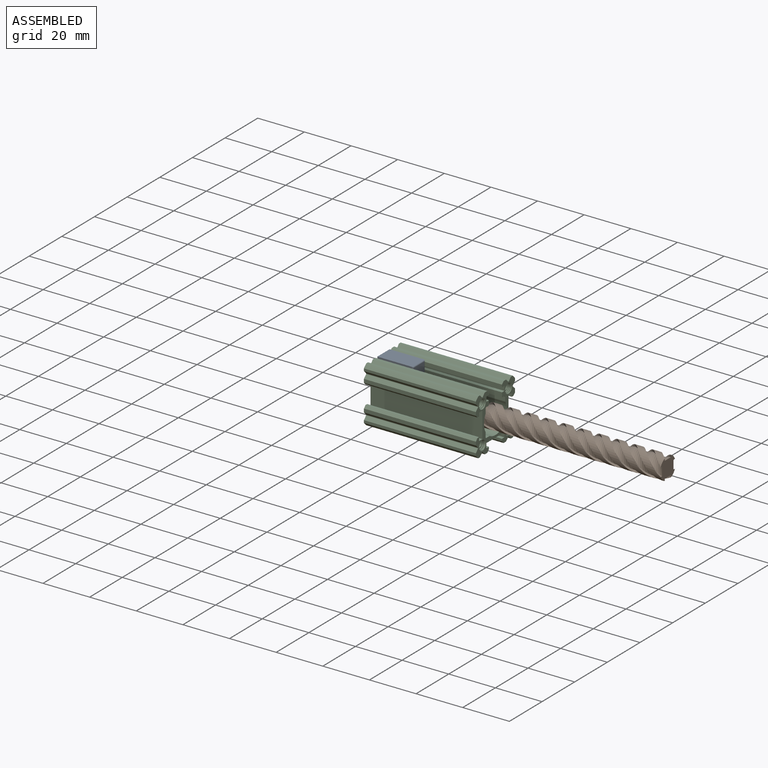
[diagram: assembled view]
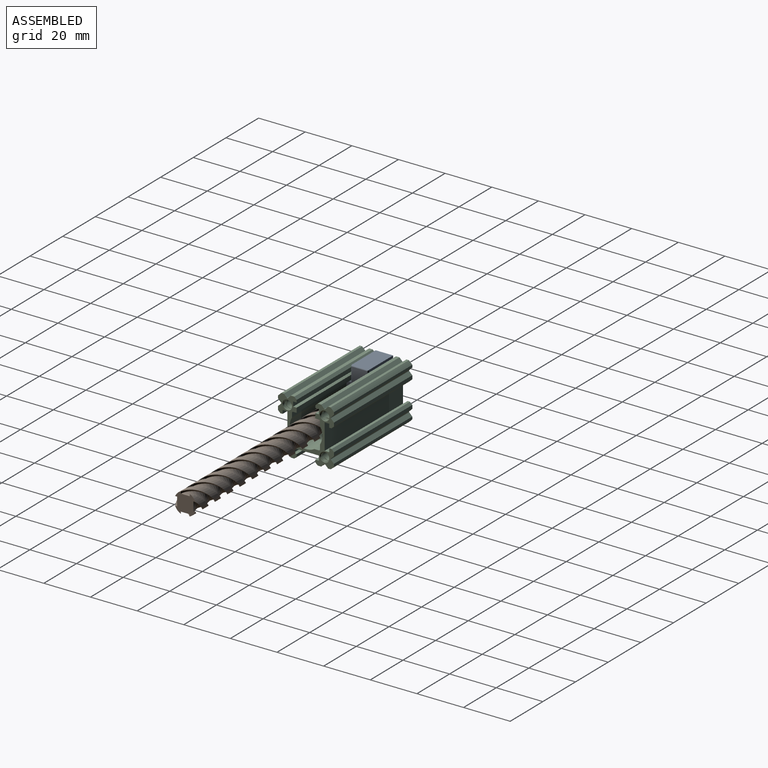
[diagram: assembled view, second angle]
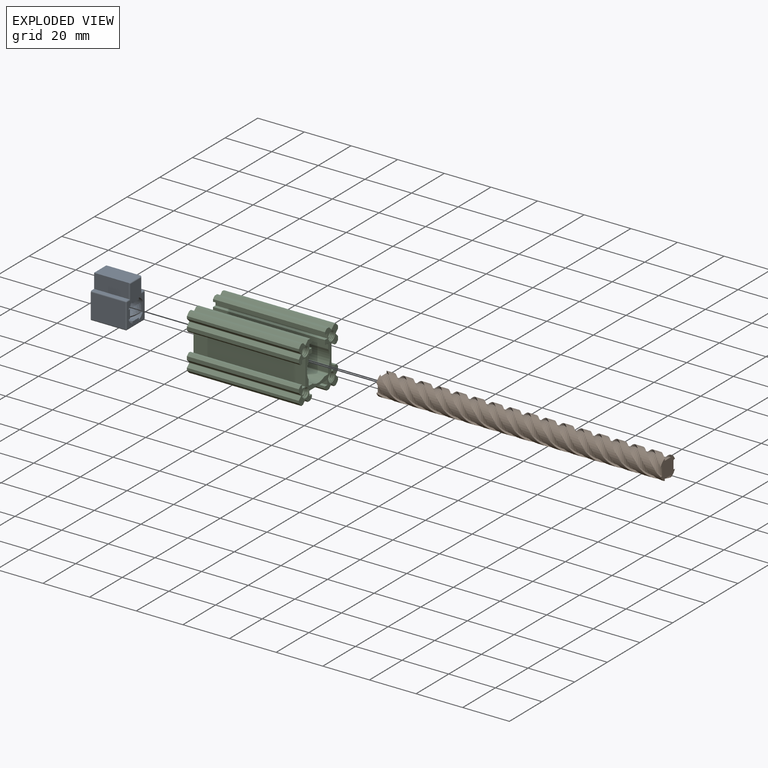
[diagram: exploded view]
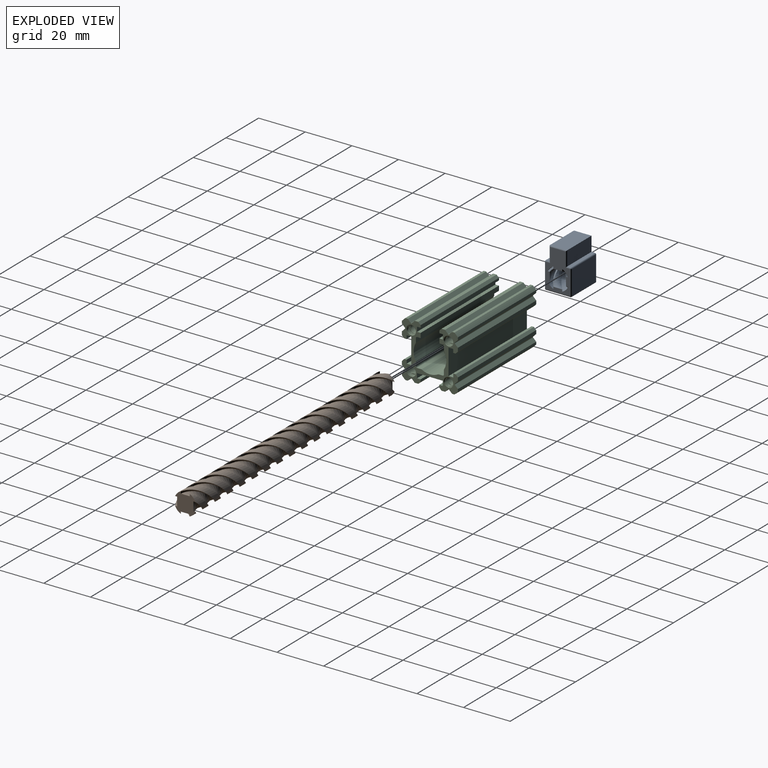
[diagram: exploded view, second angle]
ASSEMBLY  parts=3 mates=2
PART A: 46 faces, bbox 18.3x11.5x17.8 mm
  f0: extruded ~7.62x3.81mm, area 14.2mm2, adj f3,f15,f24,f29
  f1: cylinder r=4.76mm len=3.62mm, axis (-1,0,0), area 6.4mm2, adj f6,f17,f27
  f2: cylinder r=4.76mm len=11.26mm, axis (-1,0,0), area 33.7mm2, adj f6,f16,f20,f27
  f3: cylinder r=4.76mm len=11.26mm, axis (-1,0,0), area 33.6mm2, adj f0,f17,f24,f29
  f4: cylinder r=4.76mm len=15.24mm, axis (-1,0,0), area 54.3mm2, adj f16,f17,f21,f26
  f5: cylinder r=4.76mm len=15.24mm, axis (-1,0,0), area 54.3mm2, adj f16,f17,f18,f23
  f6: extruded ~7.62x3.81mm, area 14.2mm2, adj f1,f2,f20,f27
  f7: plane 14.74x1.5mm, normal (0,0,1), area 22.1mm2, adj f8,f17,f30,f34
  f8: plane 14.74x6.25mm, normal (0,-1,0), area 92.1mm2, adj f7,f9,f17,f36
  f9: plane 14.74x7.5mm, normal (0,0,1), area 110.5mm2, adj f8,f10,f17,f39
  f10: plane 14.74x6.25mm, normal (0,1,0), area 92.1mm2, adj f9,f11,f17,f41
  f11: plane 14.74x1.5mm, normal (0,0,1), area 22.1mm2, adj f10,f17,f43,f45
  f12: plane 14.74x10.5mm, normal (0,1,0), area 154.8mm2, adj f17,f37,f42,f45
  f13: plane 14.74x10.5mm, normal (0,0,-1), area 154.8mm2, adj f17,f32,f37,f38
  f14: plane 14.74x10.5mm, normal (0,-1,0), area 154.8mm2, adj f17,f30,f32,f33
  f15: cylinder r=4.76mm len=3.62mm, axis (-1,0,0), area 6.4mm2, adj f0,f16,f29
  f16: plane 16.75x10.5mm, normal (1,0,0), area 97mm2, adj f2,f4,f5,f15,f18,f19,f20,f21
  f17: plane 17.75x11.5mm, normal (-1,0,0), area 125mm2, adj f1,f3,f4,f5,f7,f8,f9,f10
  f18: bspline ~18.29x9.35mm, area 17.1mm2, adj f5,f16,f17,f19
  f19: bspline ~18.29x8.22mm, area 59.5mm2, adj f16,f17,f18,f20
  f20: bspline ~15.24x9.35mm, area 17.1mm2, adj f2,f6,f16,f17,f19
  f21: bspline ~18.29x9.35mm, area 17.1mm2, adj f4,f16,f17,f22
  f22: bspline ~18.29x8.22mm, area 59.5mm2, adj f16,f17,f21,f23
  f23: bspline ~18.29x9.97mm, area 17.1mm2, adj f5,f16,f17,f22
  f24: bspline ~18.29x9.35mm, area 17.1mm2, adj f0,f3,f16,f17,f25
  f25: bspline ~18.29x8.22mm, area 59.5mm2, adj f16,f17,f24,f26
  f26: bspline ~18.29x9.97mm, area 17.1mm2, adj f4,f16,f17,f25
  f27: bspline ~18.29x9.35mm, area 17.1mm2, adj f1,f2,f6,f16,f17,f28
  f28: bspline ~18.29x8.22mm, area 59.5mm2, adj f16,f17,f27,f29
  f29: bspline ~15.24x9.35mm, area 17.1mm2, adj f0,f3,f15,f16,f17,f28
  f30: cylinder r=0.5mm len=14.74mm, axis (-1,0,0), area 11.6mm2, adj f7,f14,f17,f31
  f31: sphere r=0.5mm, area 0.5mm2, adj f30,f33,f34
  f32: cylinder r=0.5mm len=14.74mm, axis (1,0,0), area 11.6mm2, adj f13,f14,f17,f35
  f33: cylinder r=0.5mm len=10.5mm, axis (0,0,-1), area 8.2mm2, adj f14,f16,f31,f35
  f34: cylinder r=0.5mm len=2mm, axis (0,-1,0), area 1.4mm2, adj f7,f16,f31,f36
  f35: sphere r=0.5mm, area 0.2mm2, adj f32,f33,f38
  f36: cylinder r=0.5mm len=6.75mm, axis (0,0,-1), area 4.9mm2, adj f8,f16,f34,f39
  f37: cylinder r=0.5mm len=14.74mm, axis (-1,0,0), area 11.6mm2, adj f12,f13,f17,f40
  f38: cylinder r=0.5mm len=10.5mm, axis (0,1,0), area 8.2mm2, adj f13,f16,f35,f40
  f39: cylinder r=0.5mm len=7.5mm, axis (0,-1,0), area 5.5mm2, adj f9,f16,f36,f41
  f40: sphere r=0.5mm, area 0.5mm2, adj f37,f38,f42
  f41: cylinder r=0.5mm len=6.75mm, axis (0,0,1), area 4.9mm2, adj f10,f16,f39,f43
  f42: cylinder r=0.5mm len=10.5mm, axis (0,0,1), area 8.2mm2, adj f12,f16,f40,f44
  f43: cylinder r=0.5mm len=2mm, axis (0,-1,0), area 1.4mm2, adj f11,f16,f41,f44
  f44: sphere r=0.5mm, area 0.3mm2, adj f42,f43,f45
  f45: cylinder r=0.5mm len=14.74mm, axis (1,0,0), area 11.6mm2, adj f11,f12,f17,f44
PART B: 18 faces, bbox 121.9x10x10 mm
  f0: bspline ~121.92x9.97mm, area 135.4mm2, adj f1,f4,f7,f8
  f1: bspline ~121.92x8.3mm, area 468.9mm2, adj f0,f2,f7,f8
  f2: bspline ~121.92x9.97mm, area 135.4mm2, adj f1,f3,f7,f8
  f3: cylinder r=4.76mm len=121.92mm, axis (-1,0,0), area 429.1mm2, adj f2,f7,f8,f17
  f4: cylinder r=4.76mm len=121.92mm, axis (-1,0,0), area 429.1mm2, adj f0,f7,f8,f12
  f5: cylinder r=4.76mm len=121.92mm, axis (-1,0,0), area 429.1mm2, adj f7,f8,f10,f13
  f6: cylinder r=4.76mm len=121.92mm, axis (-1,0,0), area 429.1mm2, adj f7,f8,f11,f16
  f7: plane 8.73x8.73mm, normal (1,0,0), area 53.9mm2, adj f0,f1,f2,f3,f4,f5,f6,f9
  f8: plane 8.73x8.73mm, normal (-1,0,0), area 53.9mm2, adj f0,f1,f2,f3,f4,f5,f6,f9
  f9: bspline ~121.92x8.3mm, area 468.9mm2, adj f7,f8,f10,f11
  f10: bspline ~121.92x9.97mm, area 135.4mm2, adj f5,f7,f8,f9
  f11: bspline ~121.92x9.97mm, area 135.4mm2, adj f6,f7,f8,f9
  f12: bspline ~121.92x9.97mm, area 135.4mm2, adj f4,f7,f8,f14
  f13: bspline ~121.92x9.97mm, area 135.4mm2, adj f5,f7,f8,f14
  f14: bspline ~121.92x8.3mm, area 468.9mm2, adj f7,f8,f12,f13
  f15: bspline ~121.92x8.3mm, area 468.9mm2, adj f7,f8,f16,f17
  f16: bspline ~121.92x9.97mm, area 135.4mm2, adj f6,f7,f8,f15
  f17: bspline ~121.92x9.97mm, area 135.4mm2, adj f3,f7,f8,f15
PART C: 308 faces, bbox 24.1x48.8x24.1 mm
  f0: cylinder r=2mm len=13.95mm, axis (0,-1,0), area 21.9mm2, adj f180,f305,f306,f307
  f1: cylinder r=2mm len=13.95mm, axis (0,-1,0), area 21.9mm2, adj f178,f302,f303,f304
  f2: cylinder r=2mm len=13.95mm, axis (0,-1,0), area 21.9mm2, adj f177,f299,f300,f301
  f3: cylinder r=2mm len=13.95mm, axis (0,-1,0), area 21.9mm2, adj f176,f296,f297,f298
  f4: cylinder r=2mm len=13.95mm, axis (0,1,0), area 21.9mm2, adj f175,f293,f294,f295
  f5: cylinder r=2mm len=13.95mm, axis (0,1,0), area 21.9mm2, adj f173,f290,f291,f292
  f6: cylinder r=2mm len=13.95mm, axis (0,1,0), area 21.9mm2, adj f172,f287,f288,f289
  f7: cylinder r=2mm len=13.95mm, axis (0,1,0), area 21.9mm2, adj f171,f284,f285,f286
  f8: cylinder r=0.25mm len=48mm, axis (0,-1,0), area 18.8mm2, adj f182,f183,f237,f238
  f9: cylinder r=0.25mm len=48mm, axis (0,-1,0), area 18.8mm2, adj f182,f183,f239,f240
  f10: cylinder r=1.7mm len=3.4mm, axis (0,1,0), area 2.8mm2, adj f11,f29,f300,f301
  f11: cylinder r=1.7mm len=3.4mm, axis (0,1,0), area 2.8mm2, adj f10,f12,f300,f301
  f12: cylinder r=1.7mm len=3.4mm, axis (0,1,0), area 2.8mm2, adj f11,f13,f300,f301
  f13: cylinder r=1.7mm len=3.4mm, axis (0,1,0), area 2.8mm2, adj f12,f14,f300,f301
  f14: cylinder r=1.7mm len=3.4mm, axis (0,1,0), area 2.8mm2, adj f13,f15,f300,f301
  f15: cylinder r=1.7mm len=3.4mm, axis (0,1,0), area 2.8mm2, adj f14,f16,f300,f301
  f16: cylinder r=1.7mm len=3.4mm, axis (0,1,0), area 2.8mm2, adj f15,f17,f300,f301
  f17: cylinder r=1.7mm len=3.4mm, axis (0,1,0), area 2.8mm2, adj f16,f18,f300,f301
  f18: cylinder r=1.7mm len=3.4mm, axis (0,1,0), area 2.8mm2, adj f17,f19,f300,f301
  f19: cylinder r=1.7mm len=3.4mm, axis (0,1,0), area 2.8mm2, adj f18,f20,f300,f301
  f20: cylinder r=1.7mm len=3.4mm, axis (0,1,0), area 2.8mm2, adj f19,f21,f300,f301
  f21: cylinder r=1.7mm len=3.4mm, axis (0,1,0), area 2.8mm2, adj f20,f22,f300,f301
  f22: cylinder r=1.7mm len=3.4mm, axis (0,1,0), area 2.8mm2, adj f21,f23,f300,f301
  f23: cylinder r=1.7mm len=3.4mm, axis (0,1,0), area 2.8mm2, adj f22,f24,f300,f301
  f24: cylinder r=1.7mm len=3.4mm, axis (0,1,0), area 2.8mm2, adj f23,f25,f300,f301
  f25: cylinder r=1.7mm len=3.4mm, axis (0,1,0), area 2.8mm2, adj f24,f26,f300,f301
  f26: cylinder r=1.7mm len=3.4mm, axis (0,1,0), area 2.8mm2, adj f25,f27,f300,f301
  f27: cylinder r=1.7mm len=3.4mm, axis (0,1,0), area 2.8mm2, adj f26,f28,f300,f301
  f28: cylinder r=1.7mm len=21.9mm, axis (0,1,0), area 220.3mm2, adj f27,f46,f287,f288,f289,f299,f300,f301
  f29: cylinder r=1.7mm len=3.4mm, axis (0,1,0), area 0.9mm2, adj f10,f177,f300,f301
  f30: cylinder r=1.7mm len=3.4mm, axis (0,1,0), area 2.8mm2, adj f31,f47,f288,f289
  f31: cylinder r=1.7mm len=3.4mm, axis (0,1,0), area 2.8mm2, adj f30,f32,f288,f289
  f32: cylinder r=1.7mm len=3.4mm, axis (0,1,0), area 2.8mm2, adj f31,f33,f288,f289
  f33: cylinder r=1.7mm len=3.4mm, axis (0,1,0), area 2.8mm2, adj f32,f34,f288,f289
  f34: cylinder r=1.7mm len=3.4mm, axis (0,1,0), area 2.8mm2, adj f33,f35,f288,f289
  f35: cylinder r=1.7mm len=3.4mm, axis (0,1,0), area 2.8mm2, adj f34,f36,f288,f289
  f36: cylinder r=1.7mm len=3.4mm, axis (0,1,0), area 2.8mm2, adj f35,f37,f288,f289
  f37: cylinder r=1.7mm len=3.4mm, axis (0,1,0), area 2.8mm2, adj f36,f38,f288,f289
  f38: cylinder r=1.7mm len=3.4mm, axis (0,1,0), area 2.8mm2, adj f37,f39,f288,f289
  f39: cylinder r=1.7mm len=3.4mm, axis (0,1,0), area 2.8mm2, adj f38,f40,f288,f289
  f40: cylinder r=1.7mm len=3.4mm, axis (0,1,0), area 2.8mm2, adj f39,f41,f288,f289
  f41: cylinder r=1.7mm len=3.4mm, axis (0,1,0), area 2.8mm2, adj f40,f42,f288,f289
  f42: cylinder r=1.7mm len=3.4mm, axis (0,1,0), area 2.8mm2, adj f41,f43,f288,f289
  f43: cylinder r=1.7mm len=3.4mm, axis (0,1,0), area 2.8mm2, adj f42,f44,f288,f289
  f44: cylinder r=1.7mm len=3.4mm, axis (0,1,0), area 2.8mm2, adj f43,f45,f288,f289
  f45: cylinder r=1.7mm len=3.4mm, axis (0,1,0), area 2.8mm2, adj f44,f46,f288,f289
  f46: cylinder r=1.7mm len=3.4mm, axis (0,1,0), area 2.8mm2, adj f28,f45,f288,f289
  f47: cylinder r=1.7mm len=3.4mm, axis (0,1,0), area 2.8mm2, adj f30,f48,f288,f289
  f48: cylinder r=1.7mm len=3.4mm, axis (0,1,0), area 0.9mm2, adj f47,f172,f288,f289
  f49: cylinder r=1.7mm len=20.85mm, axis (0,1,0), area 216mm2, adj f50,f87,f290,f291,f292,f302,f303,f304
  f50: cylinder r=1.7mm len=3.4mm, axis (0,1,0), area 2.8mm2, adj f49,f51,f303,f304
  f51: cylinder r=1.7mm len=3.4mm, axis (0,1,0), area 2.8mm2, adj f50,f52,f303,f304
  f52: cylinder r=1.7mm len=3.4mm, axis (0,1,0), area 2.8mm2, adj f51,f53,f303,f304
  f53: cylinder r=1.7mm len=3.4mm, axis (0,1,0), area 2.8mm2, adj f52,f54,f303,f304
  f54: cylinder r=1.7mm len=3.4mm, axis (0,1,0), area 2.8mm2, adj f53,f55,f303,f304
  f55: cylinder r=1.7mm len=3.4mm, axis (0,1,0), area 2.8mm2, adj f54,f56,f303,f304
  f56: cylinder r=1.7mm len=3.4mm, axis (0,1,0), area 2.8mm2, adj f55,f57,f303,f304
  f57: cylinder r=1.7mm len=3.4mm, axis (0,1,0), area 2.8mm2, adj f56,f58,f303,f304
  f58: cylinder r=1.7mm len=3.4mm, axis (0,1,0), area 2.8mm2, adj f57,f59,f303,f304
  f59: cylinder r=1.7mm len=3.4mm, axis (0,1,0), area 2.8mm2, adj f58,f60,f303,f304
  f60: cylinder r=1.7mm len=3.4mm, axis (0,1,0), area 2.8mm2, adj f59,f61,f303,f304
  f61: cylinder r=1.7mm len=3.4mm, axis (0,1,0), area 2.8mm2, adj f60,f62,f303,f304
  f62: cylinder r=1.7mm len=3.4mm, axis (0,1,0), area 2.8mm2, adj f61,f63,f303,f304
  f63: cylinder r=1.7mm len=3.4mm, axis (0,1,0), area 2.8mm2, adj f62,f64,f303,f304
  f64: cylinder r=1.7mm len=3.4mm, axis (0,1,0), area 2.8mm2, adj f63,f65,f303,f304
  f65: cylinder r=1.7mm len=3.4mm, axis (0,1,0), area 2.8mm2, adj f64,f66,f303,f304
  f66: cylinder r=1.7mm len=3.4mm, axis (0,1,0), area 2.8mm2, adj f65,f67,f303,f304
  f67: cylinder r=1.7mm len=3.4mm, axis (0,1,0), area 2.8mm2, adj f66,f68,f303,f304
  f68: cylinder r=1.7mm len=3.4mm, axis (0,1,0), area 2.8mm2, adj f67,f69,f179,f303,f304
  f69: cylinder r=1.7mm len=1.91mm, axis (0,1,0), area 0.3mm2, adj f68,f178,f303
  f70: cylinder r=1.7mm len=3.4mm, axis (0,1,0), area 2.8mm2, adj f71,f88,f291,f292
  f71: cylinder r=1.7mm len=3.4mm, axis (0,1,0), area 2.8mm2, adj f70,f72,f291,f292
  f72: cylinder r=1.7mm len=3.4mm, axis (0,1,0), area 2.8mm2, adj f71,f73,f291,f292
  f73: cylinder r=1.7mm len=3.4mm, axis (0,1,0), area 2.8mm2, adj f72,f74,f291,f292
  f74: cylinder r=1.7mm len=3.4mm, axis (0,1,0), area 2.8mm2, adj f73,f75,f291,f292
  f75: cylinder r=1.7mm len=3.4mm, axis (0,1,0), area 2.8mm2, adj f74,f76,f291,f292
  f76: cylinder r=1.7mm len=3.4mm, axis (0,1,0), area 2.8mm2, adj f75,f77,f291,f292
  f77: cylinder r=1.7mm len=3.4mm, axis (0,1,0), area 2.8mm2, adj f76,f78,f291,f292
  f78: cylinder r=1.7mm len=3.4mm, axis (0,1,0), area 2.8mm2, adj f77,f79,f291,f292
  f79: cylinder r=1.7mm len=3.4mm, axis (0,1,0), area 2.8mm2, adj f78,f80,f291,f292
  f80: cylinder r=1.7mm len=3.4mm, axis (0,1,0), area 2.8mm2, adj f79,f81,f291,f292
  f81: cylinder r=1.7mm len=3.4mm, axis (0,1,0), area 2.8mm2, adj f80,f82,f291,f292
  f82: cylinder r=1.7mm len=3.4mm, axis (0,1,0), area 2.8mm2, adj f81,f83,f291,f292
  f83: cylinder r=1.7mm len=3.4mm, axis (0,1,0), area 2.8mm2, adj f82,f84,f291,f292
  f84: cylinder r=1.7mm len=3.4mm, axis (0,1,0), area 2.8mm2, adj f83,f85,f291,f292
  f85: cylinder r=1.7mm len=3.4mm, axis (0,1,0), area 2.8mm2, adj f84,f86,f291,f292
  f86: cylinder r=1.7mm len=3.4mm, axis (0,1,0), area 2.8mm2, adj f85,f87,f291,f292
  f87: cylinder r=1.7mm len=3.4mm, axis (0,1,0), area 2.8mm2, adj f49,f86,f291,f292
  f88: cylinder r=1.7mm len=3.4mm, axis (0,1,0), area 2.8mm2, adj f70,f89,f174,f291,f292
  f89: cylinder r=1.7mm len=1.91mm, axis (0,1,0), area 0.3mm2, adj f88,f173,f291
  f90: cylinder r=1.7mm len=21.2mm, axis (0,1,0), area 217.4mm2, adj f91,f128,f293,f294,f295,f305,f306,f307
  f91: cylinder r=1.7mm len=3.4mm, axis (0,1,0), area 2.8mm2, adj f90,f92,f306,f307
  f92: cylinder r=1.7mm len=3.4mm, axis (0,1,0), area 2.8mm2, adj f91,f93,f306,f307
  f93: cylinder r=1.7mm len=3.4mm, axis (0,1,0), area 2.8mm2, adj f92,f94,f306,f307
  f94: cylinder r=1.7mm len=3.4mm, axis (0,1,0), area 2.8mm2, adj f93,f95,f306,f307
  f95: cylinder r=1.7mm len=3.4mm, axis (0,1,0), area 2.8mm2, adj f94,f96,f306,f307
  f96: cylinder r=1.7mm len=3.4mm, axis (0,1,0), area 2.8mm2, adj f95,f97,f306,f307
  f97: cylinder r=1.7mm len=3.4mm, axis (0,1,0), area 2.8mm2, adj f96,f98,f306,f307
  f98: cylinder r=1.7mm len=3.4mm, axis (0,1,0), area 2.8mm2, adj f97,f99,f306,f307
  f99: cylinder r=1.7mm len=3.4mm, axis (0,1,0), area 2.8mm2, adj f98,f100,f306,f307
  f100: cylinder r=1.7mm len=3.4mm, axis (0,1,0), area 2.8mm2, adj f99,f101,f306,f307
  f101: cylinder r=1.7mm len=3.4mm, axis (0,1,0), area 2.8mm2, adj f100,f102,f306,f307
  f102: cylinder r=1.7mm len=3.4mm, axis (0,1,0), area 2.8mm2, adj f101,f103,f306,f307
  f103: cylinder r=1.7mm len=3.4mm, axis (0,1,0), area 2.8mm2, adj f102,f104,f306,f307
  f104: cylinder r=1.7mm len=3.4mm, axis (0,1,0), area 2.8mm2, adj f103,f105,f306,f307
  f105: cylinder r=1.7mm len=3.4mm, axis (0,1,0), area 2.8mm2, adj f104,f106,f306,f307
  f106: cylinder r=1.7mm len=3.4mm, axis (0,1,0), area 2.8mm2, adj f105,f107,f306,f307
  f107: cylinder r=1.7mm len=3.4mm, axis (0,1,0), area 2.8mm2, adj f106,f108,f306,f307
  f108: cylinder r=1.7mm len=3.4mm, axis (0,1,0), area 2.8mm2, adj f107,f109,f306,f307
  f109: cylinder r=1.7mm len=3.4mm, axis (0,1,0), area 2.4mm2, adj f108,f110,f180,f306,f307
  f110: cylinder r=1.7mm len=0.21mm, axis (0,1,0), area 0mm2, adj f109,f180,f306
  f111: cylinder r=1.7mm len=3.4mm, axis (0,1,0), area 2.8mm2, adj f112,f129,f294,f295
  f112: cylinder r=1.7mm len=3.4mm, axis (0,1,0), area 2.8mm2, adj f111,f113,f294,f295
  f113: cylinder r=1.7mm len=3.4mm, axis (0,1,0), area 2.8mm2, adj f112,f114,f294,f295
  f114: cylinder r=1.7mm len=3.4mm, axis (0,1,0), area 2.8mm2, adj f113,f115,f294,f295
  f115: cylinder r=1.7mm len=3.4mm, axis (0,1,0), area 2.8mm2, adj f114,f116,f294,f295
  f116: cylinder r=1.7mm len=3.4mm, axis (0,1,0), area 2.8mm2, adj f115,f117,f294,f295
  f117: cylinder r=1.7mm len=3.4mm, axis (0,1,0), area 2.8mm2, adj f116,f118,f294,f295
  f118: cylinder r=1.7mm len=3.4mm, axis (0,1,0), area 2.8mm2, adj f117,f119,f294,f295
  f119: cylinder r=1.7mm len=3.4mm, axis (0,1,0), area 2.8mm2, adj f118,f120,f294,f295
  f120: cylinder r=1.7mm len=3.4mm, axis (0,1,0), area 2.8mm2, adj f119,f121,f294,f295
  f121: cylinder r=1.7mm len=3.4mm, axis (0,1,0), area 2.8mm2, adj f120,f122,f294,f295
  f122: cylinder r=1.7mm len=3.4mm, axis (0,1,0), area 2.8mm2, adj f121,f123,f294,f295
  f123: cylinder r=1.7mm len=3.4mm, axis (0,1,0), area 2.8mm2, adj f122,f124,f294,f295
  f124: cylinder r=1.7mm len=3.4mm, axis (0,1,0), area 2.8mm2, adj f123,f125,f294,f295
  f125: cylinder r=1.7mm len=3.4mm, axis (0,1,0), area 2.8mm2, adj f124,f126,f294,f295
  f126: cylinder r=1.7mm len=3.4mm, axis (0,1,0), area 2.8mm2, adj f125,f127,f294,f295
  f127: cylinder r=1.7mm len=3.4mm, axis (0,1,0), area 2.8mm2, adj f126,f128,f294,f295
  f128: cylinder r=1.7mm len=3.4mm, axis (0,1,0), area 2.8mm2, adj f90,f127,f294,f295
  f129: cylinder r=1.7mm len=3.4mm, axis (0,1,0), area 2.4mm2, adj f111,f130,f175,f294,f295
  f130: cylinder r=1.7mm len=0.21mm, axis (0,1,0), area 0mm2, adj f129,f175,f294
  f131: cylinder r=1.7mm len=3.4mm, axis (0,1,0), area 2.8mm2, adj f132,f150,f297,f298
  f132: cylinder r=1.7mm len=3.4mm, axis (0,1,0), area 2.8mm2, adj f131,f133,f297,f298
  f133: cylinder r=1.7mm len=3.4mm, axis (0,1,0), area 2.8mm2, adj f132,f134,f297,f298
  f134: cylinder r=1.7mm len=3.4mm, axis (0,1,0), area 2.8mm2, adj f133,f135,f297,f298
  f135: cylinder r=1.7mm len=3.4mm, axis (0,1,0), area 2.8mm2, adj f134,f136,f297,f298
  f136: cylinder r=1.7mm len=3.4mm, axis (0,1,0), area 2.8mm2, adj f135,f137,f297,f298
  f137: cylinder r=1.7mm len=3.4mm, axis (0,1,0), area 2.8mm2, adj f136,f138,f297,f298
  f138: cylinder r=1.7mm len=3.4mm, axis (0,1,0), area 2.8mm2, adj f137,f139,f297,f298
  f139: cylinder r=1.7mm len=3.4mm, axis (0,1,0), area 2.8mm2, adj f138,f140,f297,f298
  f140: cylinder r=1.7mm len=3.4mm, axis (0,1,0), area 2.8mm2, adj f139,f141,f297,f298
  f141: cylinder r=1.7mm len=3.4mm, axis (0,1,0), area 2.8mm2, adj f140,f142,f297,f298
  f142: cylinder r=1.7mm len=3.4mm, axis (0,1,0), area 2.8mm2, adj f141,f143,f297,f298
  f143: cylinder r=1.7mm len=3.4mm, axis (0,1,0), area 2.8mm2, adj f142,f144,f297,f298
  f144: cylinder r=1.7mm len=3.4mm, axis (0,1,0), area 2.8mm2, adj f143,f145,f297,f298
  f145: cylinder r=1.7mm len=3.4mm, axis (0,1,0), area 2.8mm2, adj f144,f146,f297,f298
  f146: cylinder r=1.7mm len=3.4mm, axis (0,1,0), area 2.8mm2, adj f145,f147,f297,f298
  f147: cylinder r=1.7mm len=3.4mm, axis (0,1,0), area 2.8mm2, adj f146,f148,f297,f298
  f148: cylinder r=1.7mm len=3.4mm, axis (0,1,0), area 2.8mm2, adj f147,f149,f297,f298
  f149: cylinder r=1.7mm len=21.55mm, axis (0,1,0), area 218.9mm2, adj f148,f167,f284,f285,f286,f296,f297,f298
  f150: cylinder r=1.7mm len=3.4mm, axis (0,1,0), area 1.6mm2, adj f131,f176,f297,f298
  f151: cylinder r=1.7mm len=3.4mm, axis (0,1,0), area 2.8mm2, adj f152,f168,f285,f286
  f152: cylinder r=1.7mm len=3.4mm, axis (0,1,0), area 2.8mm2, adj f151,f153,f285,f286
  f153: cylinder r=1.7mm len=3.4mm, axis (0,1,0), area 2.8mm2, adj f152,f154,f285,f286
  f154: cylinder r=1.7mm len=3.4mm, axis (0,1,0), area 2.8mm2, adj f153,f155,f285,f286
  f155: cylinder r=1.7mm len=3.4mm, axis (0,1,0), area 2.8mm2, adj f154,f156,f285,f286
  f156: cylinder r=1.7mm len=3.4mm, axis (0,1,0), area 2.8mm2, adj f155,f157,f285,f286
  f157: cylinder r=1.7mm len=3.4mm, axis (0,1,0), area 2.8mm2, adj f156,f158,f285,f286
  f158: cylinder r=1.7mm len=3.4mm, axis (0,1,0), area 2.8mm2, adj f157,f159,f285,f286
  f159: cylinder r=1.7mm len=3.4mm, axis (0,1,0), area 2.8mm2, adj f158,f160,f285,f286
  f160: cylinder r=1.7mm len=3.4mm, axis (0,1,0), area 2.8mm2, adj f159,f161,f285,f286
  f161: cylinder r=1.7mm len=3.4mm, axis (0,1,0), area 2.8mm2, adj f160,f162,f285,f286
  f162: cylinder r=1.7mm len=3.4mm, axis (0,1,0), area 2.8mm2, adj f161,f163,f285,f286
  f163: cylinder r=1.7mm len=3.4mm, axis (0,1,0), area 2.8mm2, adj f162,f164,f285,f286
  f164: cylinder r=1.7mm len=3.4mm, axis (0,1,0), area 2.8mm2, adj f163,f165,f285,f286
  f165: cylinder r=1.7mm len=3.4mm, axis (0,1,0), area 2.8mm2, adj f164,f166,f285,f286
  f166: cylinder r=1.7mm len=3.4mm, axis (0,1,0), area 2.8mm2, adj f165,f167,f285,f286
  f167: cylinder r=1.7mm len=3.4mm, axis (0,1,0), area 2.8mm2, adj f149,f166,f285,f286
  f168: cylinder r=1.7mm len=3.4mm, axis (0,1,0), area 2.8mm2, adj f151,f169,f285,f286
  f169: cylinder r=1.7mm len=3.4mm, axis (0,1,0), area 1.7mm2, adj f168,f171,f285,f286
  f170: cylinder r=7mm len=48mm, axis (0,1,0), area 351mm2, adj f182,f183,f261,f262
  f171: cone r=2.05mm half-angle=45deg, axis (0,-1,0), area 4mm2, adj f7,f169,f183,f285,f286
  f172: cone r=2.05mm half-angle=45deg, axis (0,-1,0), area 4mm2, adj f6,f48,f183,f288,f289
  f173: cone r=2.05mm half-angle=45deg, axis (0,-1,0), area 3.9mm2, adj f5,f89,f174,f183,f291,f292
  f174: cone r=2.05mm half-angle=45deg, axis (0,-1,0), area 0.2mm2, adj f88,f173,f292
  f175: cone r=2.05mm half-angle=45deg, axis (0,-1,0), area 4mm2, adj f4,f129,f130,f183,f294,f295
  f176: cone r=1.7mm half-angle=45deg, axis (0,1,0), area 4mm2, adj f3,f150,f182,f297,f298
  f177: cone r=1.7mm half-angle=45deg, axis (0,1,0), area 4mm2, adj f2,f29,f182,f300,f301
  f178: cone r=1.7mm half-angle=45deg, axis (0,1,0), area 3.9mm2, adj f1,f69,f179,f182,f303,f304
  f179: cone r=1.7mm half-angle=45deg, axis (0,1,0), area 0.2mm2, adj f68,f178,f304
  f180: cone r=1.7mm half-angle=45deg, axis (0,1,0), area 4mm2, adj f0,f109,f110,f182,f306,f307
  f181: plane 48x1.53mm, normal (0,0,-1), area 73.2mm2, adj f182,f183,f270,f283
  f182: plane 24x24mm, normal (0,1,0), area 170.4mm2, adj f8,f9,f170,f176,f177,f178,f180,f181
  f183: plane 24x24mm, normal (0,-1,0), area 170.4mm2, adj f8,f9,f170,f171,f172,f173,f175,f181
  f184: cylinder r=7mm len=48mm, axis (0,1,0), area 351mm2, adj f182,f183,f259,f260
  f185: cylinder r=7mm len=48mm, axis (0,1,0), area 351mm2, adj f182,f183,f258,f263
  f186: cylinder r=0.5mm len=48mm, axis (0,1,0), area 37.7mm2, adj f182,f183,f250,f251
  f187: plane 48x1.05mm, normal (0,0,-1), area 50.2mm2, adj f182,f183,f202,f245
  f188: plane 48x1.5mm, normal (1,0,0), area 72mm2, adj f182,f183,f230,f243
  f189: plane 48x1.05mm, normal (1,0,0), area 50.2mm2, adj f182,f183,f200,f241
  f190: plane 48x1.5mm, normal (0,0,1), area 72mm2, adj f182,f183,f224,f239
  f191: plane 48x1.05mm, normal (0,0,1), area 50.2mm2, adj f182,f183,f199,f237
  f192: plane 48x1.5mm, normal (-1,0,0), area 72mm2, adj f182,f183,f218,f235
  f193: plane 48x1.05mm, normal (-1,0,0), area 50.2mm2, adj f182,f183,f201,f233
  f194: plane 48x1.5mm, normal (0,0,-1), area 72mm2, adj f182,f183,f212,f231
  f195: plane 48x1.5mm, normal (1,0,0), area 72mm2, adj f182,f183,f225,f242
  f196: plane 48x1.5mm, normal (0,0,1), area 72mm2, adj f182,f183,f219,f238
  f197: plane 48x1.5mm, normal (-1,0,0), area 72mm2, adj f182,f183,f213,f234
  f198: plane 48x1.5mm, normal (0,0,-1), area 72mm2, adj f182,f183,f207,f246
  f199: cylinder r=15.97mm len=48mm, axis (0,-1,0), area 98.8mm2, adj f182,f183,f191,f206
  f200: cylinder r=15.97mm len=48mm, axis (0,-1,0), area 98.8mm2, adj f182,f183,f189,f205
  f201: cylinder r=15.97mm len=48mm, axis (0,-1,0), area 98.8mm2, adj f182,f183,f193,f203
  f202: cylinder r=15.97mm len=48mm, axis (0,-1,0), area 98.8mm2, adj f182,f183,f187,f204
  f203: plane 48x1.05mm, normal (0,0,-1), area 50.2mm2, adj f182,f183,f201,f232
  f204: plane 48x1.05mm, normal (1,0,0), area 50.2mm2, adj f182,f183,f202,f244
  f205: plane 48x1.05mm, normal (0,0,1), area 50.2mm2, adj f182,f183,f200,f240
  f206: plane 48x1.05mm, normal (-1,0,0), area 50.2mm2, adj f182,f183,f199,f236
  f207: plane 48x1mm, normal (-0.71,0,-0.71), area 67.9mm2, adj f182,f183,f198,f208
  f208: plane 48x1mm, normal (-1,0,0), area 48mm2, adj f182,f183,f207,f209
  f209: plane 48x1.53mm, normal (0,0,1), area 73.2mm2, adj f182,f183,f208,f271
  f210: plane 48x1.53mm, normal (0,0,1), area 73.2mm2, adj f182,f183,f211,f270
  f211: plane 48x1mm, normal (1,0,0), area 48mm2, adj f182,f183,f210,f212
  f212: plane 48x1mm, normal (0.71,0,-0.71), area 67.9mm2, adj f182,f183,f194,f211
  f213: plane 48x1mm, normal (-0.71,0,0.71), area 67.9mm2, adj f182,f183,f197,f214
  f214: plane 48x1mm, normal (0,0,1), area 48mm2, adj f182,f183,f213,f215
  f215: plane 48x1.53mm, normal (1,0,0), area 73.2mm2, adj f182,f183,f214,f274
  f216: plane 48x1.53mm, normal (1,0,0), area 73.2mm2, adj f182,f183,f217,f273
  f217: plane 48x1mm, normal (0,0,-1), area 48mm2, adj f182,f183,f216,f218
  f218: plane 48x1mm, normal (-0.71,0,-0.71), area 67.9mm2, adj f182,f183,f192,f217
  f219: plane 48x1mm, normal (0.71,0,0.71), area 67.9mm2, adj f182,f183,f196,f220
  f220: plane 48x1mm, normal (1,0,0), area 48mm2, adj f182,f183,f219,f221
  f221: plane 48x1.53mm, normal (0,0,-1), area 73.2mm2, adj f182,f183,f220,f280
  f222: plane 48x1.53mm, normal (0,0,-1), area 73.2mm2, adj f182,f183,f223,f279
  f223: plane 48x1mm, normal (-1,0,0), area 48mm2, adj f182,f183,f222,f224
  f224: plane 48x1mm, normal (-0.71,0,0.71), area 67.9mm2, adj f182,f183,f190,f223
  f225: plane 48x1mm, normal (0.71,0,-0.71), area 67.9mm2, adj f182,f183,f195,f226
  f226: plane 48x1mm, normal (0,0,-1), area 48mm2, adj f182,f183,f225,f227
  f227: plane 48x1.53mm, normal (-1,0,0), area 73.2mm2, adj f182,f183,f226,f277
  f228: plane 48x1.53mm, normal (-1,0,0), area 73.2mm2, adj f182,f183,f229,f276
  f229: plane 48x1mm, normal (0,0,1), area 48mm2, adj f182,f183,f228,f230
  f230: plane 48x1mm, normal (0.71,0,0.71), area 67.9mm2, adj f182,f183,f188,f229
  f231: plane 48x1.32mm, normal (-0.71,0,-0.71), area 89.8mm2, adj f182,f183,f194,f269
  f232: plane 48x1.32mm, normal (0.71,0,-0.71), area 89.8mm2, adj f182,f183,f203,f269
  f233: plane 48x1.32mm, normal (-0.71,0,0.71), area 89.8mm2, adj f182,f183,f193,f266
  f234: plane 48x1.32mm, normal (-0.71,0,-0.71), area 89.8mm2, adj f182,f183,f197,f266
  f235: plane 48x1.32mm, normal (-0.71,0,0.71), area 89.8mm2, adj f182,f183,f192,f265
  f236: plane 48x1.32mm, normal (-0.71,0,-0.71), area 89.8mm2, adj f182,f183,f206,f265
  f237: plane 48x1.32mm, normal (0.71,0,0.71), area 89.8mm2, adj f8,f182,f183,f191
  f238: plane 48x1.32mm, normal (-0.71,0,0.71), area 89.8mm2, adj f8,f182,f183,f196
  f239: plane 48x1.32mm, normal (0.71,0,0.71), area 89.8mm2, adj f9,f182,f183,f190
  f240: plane 48x1.32mm, normal (-0.71,0,0.71), area 89.8mm2, adj f9,f182,f183,f205
  f241: plane 48x1.32mm, normal (0.71,0,-0.71), area 89.8mm2, adj f182,f183,f189,f264
  f242: plane 48x1.32mm, normal (0.71,0,0.71), area 89.8mm2, adj f182,f183,f195,f264
  f243: plane 48x1.32mm, normal (0.71,0,-0.71), area 89.8mm2, adj f182,f183,f188,f267
  f244: plane 48x1.32mm, normal (0.71,0,0.71), area 89.8mm2, adj f182,f183,f204,f267
  f245: plane 48x1.32mm, normal (-0.71,0,-0.71), area 89.8mm2, adj f182,f183,f187,f268
  f246: plane 48x1.32mm, normal (0.71,0,-0.71), area 89.8mm2, adj f182,f183,f198,f268
  f247: cylinder r=0.5mm len=48mm, axis (0,1,0), area 37.7mm2, adj f182,f183,f256,f257
  f248: cylinder r=0.5mm len=48mm, axis (0,1,0), area 37.7mm2, adj f182,f183,f254,f255
  f249: cylinder r=0.5mm len=48mm, axis (0,1,0), area 37.7mm2, adj f182,f183,f252,f253
  f250: plane 48x1.5mm, normal (0,0,1), area 72mm2, adj f182,f183,f186,f282
  f251: plane 48x1.76mm, normal (-1,0,0), area 84.4mm2, adj f182,f183,f186,f263
  f252: plane 48x1.76mm, normal (0,0,-1), area 84.4mm2, adj f182,f183,f249,f262
  f253: plane 48x1.76mm, normal (-1,0,0), area 84.4mm2, adj f182,f183,f249,f258
  f254: plane 48x1.76mm, normal (1,0,0), area 84.4mm2, adj f182,f183,f248,f260
  f255: plane 48x1.76mm, normal (0,0,-1), area 84.4mm2, adj f182,f183,f248,f261
  f256: plane 48x1.5mm, normal (0,0,1), area 72mm2, adj f182,f183,f247,f283
  f257: plane 48x1.76mm, normal (1,0,0), area 84.4mm2, adj f182,f183,f247,f259
  f258: cylinder r=0.5mm len=48mm, axis (0,1,0), area 12.5mm2, adj f182,f183,f185,f253
  f259: cylinder r=0.5mm len=48mm, axis (0,1,0), area 12.5mm2, adj f182,f183,f184,f257
  f260: cylinder r=0.5mm len=48mm, axis (0,1,0), area 12.5mm2, adj f182,f183,f184,f254
  f261: cylinder r=0.5mm len=48mm, axis (0,1,0), area 12.5mm2, adj f170,f182,f183,f255
  f262: cylinder r=0.5mm len=48mm, axis (0,1,0), area 12.5mm2, adj f170,f182,f183,f252
  f263: cylinder r=0.5mm len=48mm, axis (0,1,0), area 12.5mm2, adj f182,f183,f185,f251
  f264: cylinder r=0.25mm len=48mm, axis (0,-1,0), area 18.8mm2, adj f182,f183,f241,f242
  f265: cylinder r=0.25mm len=48mm, axis (0,-1,0), area 18.8mm2, adj f182,f183,f235,f236
  f266: cylinder r=0.25mm len=48mm, axis (0,-1,0), area 18.8mm2, adj f182,f183,f233,f234
  f267: cylinder r=0.25mm len=48mm, axis (0,-1,0), area 18.8mm2, adj f182,f183,f243,f244
  f268: cylinder r=0.25mm len=48mm, axis (0,-1,0), area 18.8mm2, adj f182,f183,f245,f246
  f269: cylinder r=0.25mm len=48mm, axis (0,-1,0), area 18.8mm2, adj f182,f183,f231,f232
  f270: plane 48x2mm, normal (1,0,0), area 96mm2, adj f181,f182,f183,f210
  f271: plane 48x2mm, normal (-1,0,0), area 96mm2, adj f182,f183,f209,f272
  f272: plane 48x1.53mm, normal (0,0,-1), area 73.2mm2, adj f182,f183,f271,f282
  f273: plane 48x2mm, normal (0,0,-1), area 96mm2, adj f182,f183,f216,f275
  f274: plane 48x2mm, normal (0,0,1), area 96mm2, adj f182,f183,f215,f275
  f275: plane 48x11.05mm, normal (-1,0,0), area 530.4mm2, adj f182,f183,f273,f274
  f276: plane 48x2mm, normal (0,0,1), area 96mm2, adj f182,f183,f228,f278
  f277: plane 48x2mm, normal (0,0,-1), area 96mm2, adj f182,f183,f227,f278
  f278: plane 48x11.05mm, normal (1,0,0), area 530.4mm2, adj f182,f183,f276,f277
  f279: plane 48x2mm, normal (-1,0,0), area 96mm2, adj f182,f183,f222,f281
  f280: plane 48x2mm, normal (1,0,0), area 96mm2, adj f182,f183,f221,f281
  f281: plane 48x11.05mm, normal (0,0,1), area 530.4mm2, adj f182,f183,f279,f280
  f282: plane 48x2mm, normal (-1,0,0), area 96mm2, adj f182,f183,f250,f272
  f283: plane 48x2mm, normal (1,0,0), area 96mm2, adj f181,f182,f183,f256
  f284: plane 3.71x3.45mm, normal (0,-1,0), area 1.3mm2, adj f7,f149,f285,f286
  f285: bspline ~14.64x4mm, area -73.5mm2, adj f7,f149,f151,f152,f153,f154,f155,f156
  f286: bspline ~14.31x4.62mm, area 83.1mm2, adj f7,f149,f151,f152,f153,f154,f155,f156
  f287: plane 3.71x3.45mm, normal (0,-1,0), area 1.3mm2, adj f6,f28,f288,f289
  f288: bspline ~14.42x4.62mm, area 83.1mm2, adj f6,f28,f30,f31,f32,f33,f34,f35
  f289: bspline ~14.31x4.62mm, area 83.1mm2, adj f6,f28,f30,f31,f32,f33,f34,f35
  f290: plane 3.71x3.45mm, normal (0,-1,0), area 1.3mm2, adj f5,f49,f291,f292
  f291: bspline ~14.64x4mm, area -73.5mm2, adj f5,f49,f70,f71,f72,f73,f74,f75
  f292: bspline ~14.31x4.62mm, area 83.1mm2, adj f5,f49,f70,f71,f72,f73,f74,f75
  f293: plane 3.71x3.45mm, normal (0,-1,0), area 1.3mm2, adj f4,f90,f294,f295
  f294: bspline ~14.42x4.62mm, area 83.1mm2, adj f4,f90,f111,f112,f113,f114,f115,f116
  f295: bspline ~14.31x4.62mm, area 83.1mm2, adj f4,f90,f111,f112,f113,f114,f115,f116
  f296: plane 3.71x3.45mm, normal (0,1,0), area 1.3mm2, adj f3,f149,f297,f298
  f297: bspline ~14.35x4mm, area -9.3mm2, adj f3,f131,f132,f133,f134,f135,f136,f137
  f298: bspline ~14.31x4.62mm, area 83.1mm2, adj f3,f131,f132,f133,f134,f135,f136,f137
  f299: plane 3.71x3.45mm, normal (0,1,0), area 1.3mm2, adj f2,f28,f300,f301
  f300: bspline ~14.42x4.62mm, area 83.1mm2, adj f2,f10,f11,f12,f13,f14,f15,f16
  f301: bspline ~14.31x4.62mm, area 83.1mm2, adj f2,f10,f11,f12,f13,f14,f15,f16
  f302: plane 3.71x3.45mm, normal (0,1,0), area 1.3mm2, adj f1,f49,f303,f304
  f303: bspline ~14.35x4mm, area -9.3mm2, adj f1,f49,f50,f51,f52,f53,f54,f55
  f304: bspline ~14.31x4.62mm, area 83.1mm2, adj f1,f49,f50,f51,f52,f53,f54,f55
  f305: plane 3.71x3.45mm, normal (0,1,0), area 1.3mm2, adj f0,f90,f306,f307
  f306: bspline ~14.42x4.62mm, area 83.1mm2, adj f0,f90,f91,f92,f93,f94,f95,f96
  f307: bspline ~14.31x4.62mm, area 83.1mm2, adj f0,f90,f91,f92,f93,f94,f95,f96
PLACE A at identity
PLACE B at identity
PLACE C rot(axis=(0.71,-0.71,0),180deg) t=(48,0,0)mm
MATE fastened C.f170 <-> B.f3  axis (-1,0,0) through (0,0,0)mm
MATE cylindrical A.f1 <-> B.f3  axis (-1,0,0) through (0,0,0)mm
